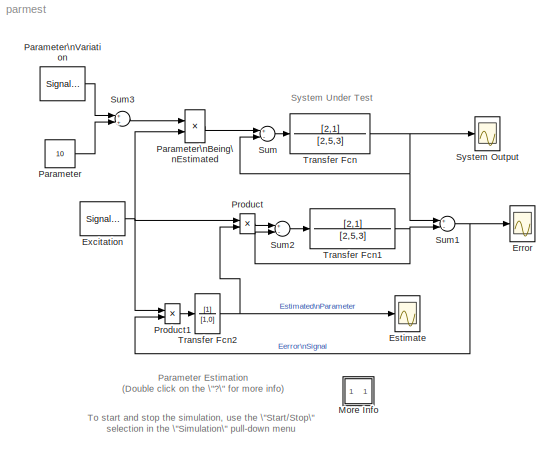
MODEL parmest
KIND model
BLOCK [Scope] Error
  DataFormat = Array
  NumInputPorts = 1
  Ports = [1]
  TickLabels = on
  TimeRange = 150
  YMax = 3
  YMin = -3
BLOCK [Scope] Estimate
  DataFormat = Array
  NumInputPorts = 1
  Ports = [1]
  TickLabels = on
  TimeRange = 150
  YMax = 14
  YMin = 6
BLOCK [SignalGenerator] Excitation
  Amplitude = 1.940000
  Frequency = 2.000000
  Ports = [0, 1]
  Units = rad/sec
  WaveForm = sawtooth
BLOCK [SubSystem] More Info
  MaskDisplay = disp('?')
  MaskIconFrame = on
  MaskIconOpaque = on
  MaskIconRotate = none
  MaskIconUnits = autoscale
  MinAlgLoopOccurrences = off
  Ports = []
  PropExecContextAcrossSSBoundary = on
  RTWSystemCode = Auto
  TreatAsAtomicUnit = off
BLOCK [Constant] Parameter
  Value = 10
BLOCK [Product] Parameter\nBeing\nEstimated
  Ports = [2, 1]
BLOCK [SignalGenerator] Parameter\nVariation
  Amplitude = 4.000000
  Frequency = 0.100000
  Ports = [0, 1]
  Units = rad/sec
  WaveForm = square
BLOCK [Product] Product
  Ports = [2, 1]
BLOCK [Product] Product1
  Ports = [2, 1]
BLOCK [Sum] Sum
  Inputs = +-
  Ports = [2, 1]
BLOCK [Sum] Sum1
  Inputs = +-
  Ports = [2, 1]
BLOCK [Sum] Sum2
  Inputs = +-
  Ports = [2, 1]
BLOCK [Sum] Sum3
  Ports = [2, 1]
BLOCK [Scope] System Output
  DataFormat = Array
  NumInputPorts = 1
  Ports = [1]
  TickLabels = on
  TimeRange = 150
  YMax = 7.5
  YMin = -7.5
BLOCK [TransferFcn] Transfer Fcn
  Denominator = [2,5,3]
  Numerator = [2,1]
BLOCK [TransferFcn] Transfer Fcn1
  Denominator = [2,5,3]
  Numerator = [2,1]
BLOCK [TransferFcn] Transfer Fcn2
  Denominator = [1,0]
ANNOTATION (root): Parameter Estimation\n(Double click on the \"?\" for more info)
ANNOTATION (root): System Under Test
ANNOTATION (root): To start and stop the simulation, use the \"Start/Stop\"\nselection in the \"Simulation\" pull-down menu
ANNOTATION More Info: The changing value of the gain applied in the \nProduct block \"Parameter being estimated\" is \nthe quantity being estimated.
ANNOTATION More Info: This system estimates a single scalar parameter.\nOpen the scopes and run the simulation.
ANNOTATION More Info: Watch the system estimate and error respond as the\ngain parameter changes during the simulation.
NET Excitation:1 -> Parameter\nBeing\nEstimated:2, Product1:1, Product:1
LINE Parameter:1 -> Sum3:2
LINE Parameter\nBeing\nEstimated:1 -> Sum:1
LINE Parameter\nVariation:1 -> Sum3:1
LINE Product1:1 -> Transfer Fcn2:1
LINE Product:1 -> Sum2:1
NET Sum1:1 -> Error:1, Product1:2
LINE Sum2:1 -> Transfer Fcn1:1
LINE Sum3:1 -> Parameter\nBeing\nEstimated:1
LINE Sum:1 -> Transfer Fcn:1
NET Transfer Fcn1:1 -> Sum1:2, Sum2:2
NET Transfer Fcn2:1 -> Estimate:1, Product:2
NET Transfer Fcn:1 -> Sum1:1, Sum:2, System Output:1
note: NET lines group one-source signal fan-out (src -> all destinations, sorted); 1:1 wires keep LINE
